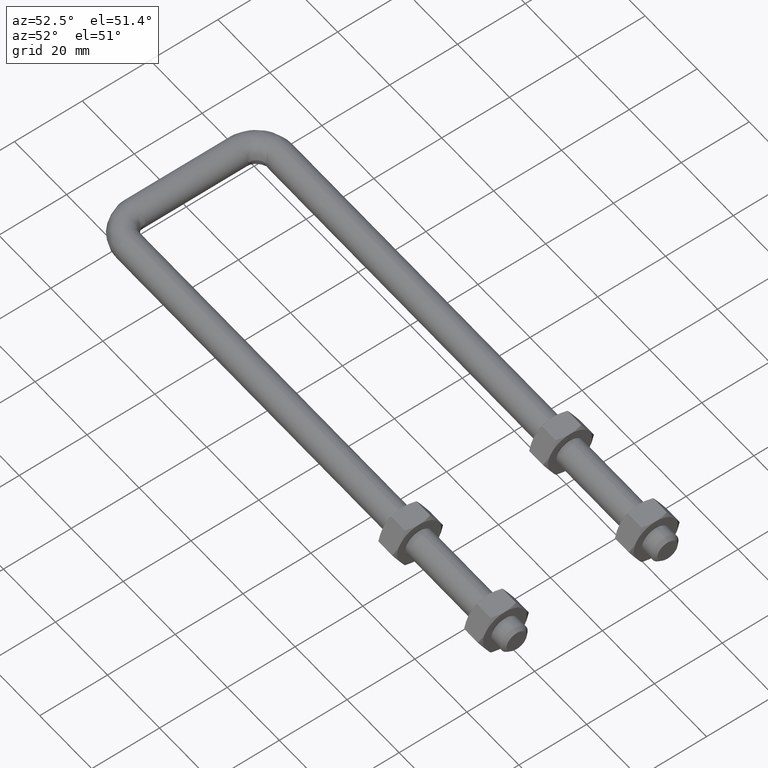
[diagram: clean part render]
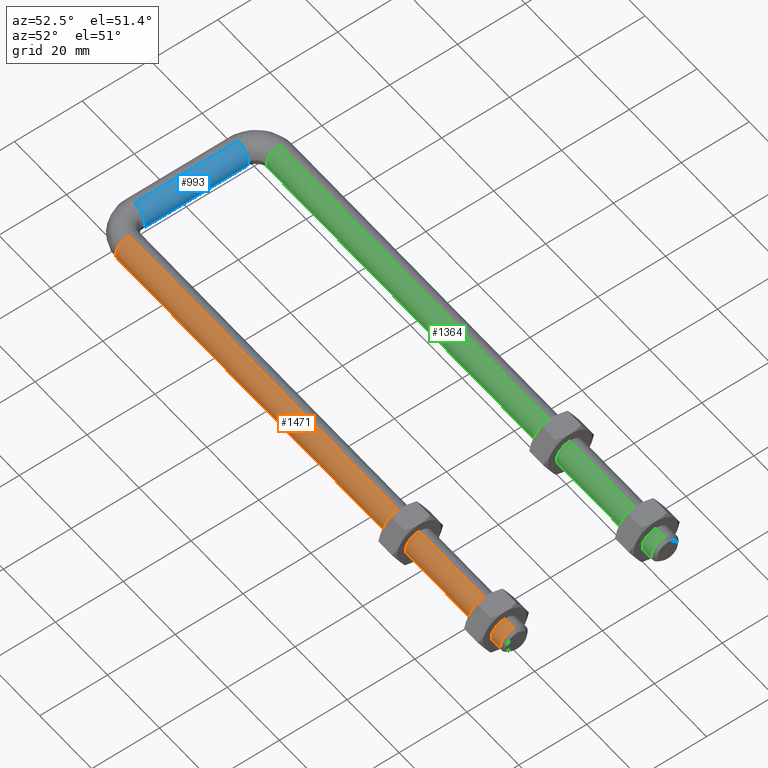
[diagram: same view with three faces highlighted in distinct colors, each labeled with its STEP entity id]
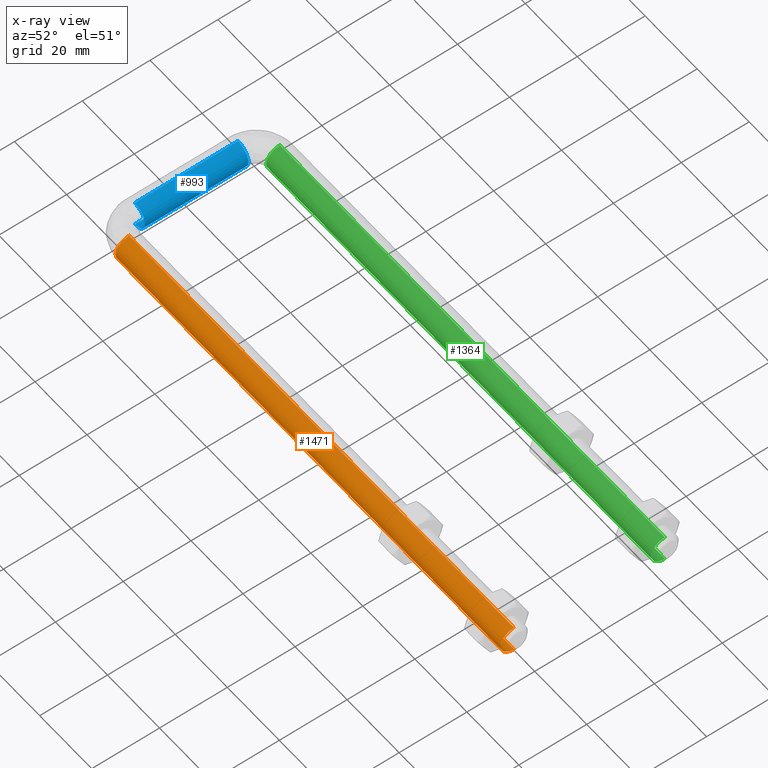
[diagram: x-ray of the same camera — body ghosted, the three highlighted faces saturated]
A machine part, auxiliary view with three faces highlighted in distinct colors.
The next image is the same camera in x-ray (body ghosted, the three faces saturated) — at least one of them is partly hidden behind the body in this view.
Their STEP definitions:

[orange] entity #1471 — the highlighted cylindrical surface (edge-blend (fillet) strip) has radius 4 mm, axis along (-1, -0, -0).
#40 = CARTESIAN_POINT ( 'NONE',  ( 7.000000000000000000, -22.25000000000000000, 0.0000000000000000000 ) ) ;
#42 = DIRECTION ( 'NONE',  ( -1.000000000000000000, -0.0000000000000000000, -0.0000000000000000000 ) ) ;
#106 = VERTEX_POINT ( 'NONE', #1505 ) ;
#114 = EDGE_CURVE ( 'NONE', #106, #197, #820, .T. ) ;
#117 = VECTOR ( 'NONE', #1183, 1000.000000000000000 ) ;
#124 = DIRECTION ( 'NONE',  ( -1.000000000000000000, -1.084202172485504300E-016, 0.0000000000000000000 ) ) ;
#197 = VERTEX_POINT ( 'NONE', #1094 ) ;
#201 = DIRECTION ( 'NONE',  ( 0.0000000000000000000, 1.000000000000000000, 0.0000000000000000000 ) ) ;
#209 = AXIS2_PLACEMENT_3D ( 'NONE', #1410, #799, #1009 ) ;
#246 = CARTESIAN_POINT ( 'NONE',  ( 7.000000000000000000, -22.25000000000000000, 0.0000000000000000000 ) ) ;
#295 = AXIS2_PLACEMENT_3D ( 'NONE', #246, #124, #201 ) ;
#333 = CARTESIAN_POINT ( 'NONE',  ( 155.0000000000019900, -22.24999999999998900, 4.000000000000000000 ) ) ;
#356 = ORIENTED_EDGE ( 'NONE', *, *, #526, .T. ) ;
#409 = DIRECTION ( 'NONE',  ( -1.000000000000000000, -0.0000000000000000000, -0.0000000000000000000 ) ) ;
#441 = CARTESIAN_POINT ( 'NONE',  ( 156.0000000000000000, -22.24999999999998900, -4.000000000000000000 ) ) ;
#476 = CARTESIAN_POINT ( 'NONE',  ( 155.0000000000019900, -22.24999999999998900, -4.000000000000000000 ) ) ;
#526 = EDGE_CURVE ( 'NONE', #998, #1048, #925, .T. ) ;
#533 = EDGE_CURVE ( 'NONE', #1138, #106, #1212, .T. ) ;
#548 = AXIS2_PLACEMENT_3D ( 'NONE', #40, #936, #1157 ) ;
#621 = ORIENTED_EDGE ( 'NONE', *, *, #114, .F. ) ;
#678 = LINE ( 'NONE', #1089, #1336 ) ;
#680 = AXIS2_PLACEMENT_3D ( 'NONE', #756, #409, #1497 ) ;
#742 = EDGE_LOOP ( 'NONE', ( #1140, #356, #1272, #621, #1201 ) ) ;
#756 = CARTESIAN_POINT ( 'NONE',  ( 156.0000000000000000, -22.24999999999998900, 0.0000000000000000000 ) ) ;
#762 = EDGE_CURVE ( 'NONE', #1048, #197, #678, .T. ) ;
#782 = LINE ( 'NONE', #441, #117 ) ;
#799 = DIRECTION ( 'NONE',  ( -1.000000000000000000, 0.0000000000000000000, 0.0000000000000000000 ) ) ;
#820 = CIRCLE ( 'NONE', #548, 4.000000000000000000 ) ;
#882 = EDGE_CURVE ( 'NONE', #998, #1138, #782, .T. ) ;
#925 = CIRCLE ( 'NONE', #209, 4.000000000000000000 ) ;
#936 = DIRECTION ( 'NONE',  ( -1.000000000000000000, -1.084202172485504300E-016, 0.0000000000000000000 ) ) ;
#998 = VERTEX_POINT ( 'NONE', #476 ) ;
#1009 = DIRECTION ( 'NONE',  ( 0.0000000000000000000, 0.0000000000000000000, -1.000000000000000000 ) ) ;
#1048 = VERTEX_POINT ( 'NONE', #333 ) ;
#1089 = CARTESIAN_POINT ( 'NONE',  ( 156.0000000000000000, -22.24999999999998900, 4.000000000000000000 ) ) ;
#1094 = CARTESIAN_POINT ( 'NONE',  ( 7.000000000000000000, -22.24999999999998900, 4.000000000000000000 ) ) ;
#1138 = VERTEX_POINT ( 'NONE', #1158 ) ;
#1140 = ORIENTED_EDGE ( 'NONE', *, *, #882, .F. ) ;
#1145 = CYLINDRICAL_SURFACE ( 'NONE', #680, 4.000000000000000000 ) ;
#1157 = DIRECTION ( 'NONE',  ( 0.0000000000000000000, 1.000000000000000000, 0.0000000000000000000 ) ) ;
#1158 = CARTESIAN_POINT ( 'NONE',  ( 7.000000000000000000, -22.24999999999998900, -4.000000000000000000 ) ) ;
#1183 = DIRECTION ( 'NONE',  ( -1.000000000000000000, -0.0000000000000000000, -0.0000000000000000000 ) ) ;
#1201 = ORIENTED_EDGE ( 'NONE', *, *, #533, .F. ) ;
#1212 = CIRCLE ( 'NONE', #295, 4.000000000000000000 ) ;
#1272 = ORIENTED_EDGE ( 'NONE', *, *, #762, .T. ) ;
#1336 = VECTOR ( 'NONE', #42, 1000.000000000000000 ) ;
#1410 = CARTESIAN_POINT ( 'NONE',  ( 155.0000000000019900, -22.24999999999998900, 0.0000000000000000000 ) ) ;
#1471 = ADVANCED_FACE ( 'NONE', ( #1530 ), #1145, .T. ) ;
#1497 = DIRECTION ( 'NONE',  ( 0.0000000000000000000, 0.0000000000000000000, 1.000000000000000000 ) ) ;
#1505 = CARTESIAN_POINT ( 'NONE',  ( 7.000000000000006200, -26.24999999999998900, 2.937866047754690900E-009 ) ) ;
#1530 = FACE_OUTER_BOUND ( 'NONE', #742, .T. ) ;

[blue] entity #993 — the highlighted cylindrical surface (edge-blend (fillet) strip) has radius 4 mm, axis along (0, -1, 0).
#3 = CYLINDRICAL_SURFACE ( 'NONE', #620, 4.000000000000000000 ) ;
#4 = CARTESIAN_POINT ( 'NONE',  ( 0.0000000000000000000, 15.25000000000000000, -4.000000000000000000 ) ) ;
#19 = CARTESIAN_POINT ( 'NONE',  ( 4.898587196589412800E-016, 15.25000000000000000, 4.000000000000000000 ) ) ;
#54 = CARTESIAN_POINT ( 'NONE',  ( 0.0000000000000000000, -15.25000000000000000, -4.000000000000000000 ) ) ;
#61 = DIRECTION ( 'NONE',  ( -0.0000000000000000000, 1.000000000000000000, -0.0000000000000000000 ) ) ;
#86 = VERTEX_POINT ( 'NONE', #425 ) ;
#108 = EDGE_CURVE ( 'NONE', #633, #1068, #199, .T. ) ;
#122 = DIRECTION ( 'NONE',  ( 0.0000000000000000000, -1.000000000000000000, 0.0000000000000000000 ) ) ;
#151 = ORIENTED_EDGE ( 'NONE', *, *, #1301, .F. ) ;
#174 = EDGE_CURVE ( 'NONE', #86, #1068, #1193, .T. ) ;
#199 = LINE ( 'NONE', #19, #1438 ) ;
#251 = CARTESIAN_POINT ( 'NONE',  ( 0.0000000000000000000, 15.25000000000000000, 0.0000000000000000000 ) ) ;
#273 = ORIENTED_EDGE ( 'NONE', *, *, #1467, .F. ) ;
#308 = CARTESIAN_POINT ( 'NONE',  ( 0.0000000000000000000, 15.25000000000000000, -4.000000000000000000 ) ) ;
#321 = CARTESIAN_POINT ( 'NONE',  ( 0.0000000000000000000, 15.25000000000000000, 0.0000000000000000000 ) ) ;
#375 = AXIS2_PLACEMENT_3D ( 'NONE', #527, #61, #1377 ) ;
#422 = ORIENTED_EDGE ( 'NONE', *, *, #108, .T. ) ;
#425 = CARTESIAN_POINT ( 'NONE',  ( 3.999999999988348900, -15.24999999999999800, 9.044274687501476200E-010 ) ) ;
#427 = DIRECTION ( 'NONE',  ( 8.881784197001252300E-016, 0.0000000000000000000, -1.000000000000000000 ) ) ;
#505 = DIRECTION ( 'NONE',  ( 1.000000000000000000, 0.0000000000000000000, 0.0000000000000000000 ) ) ;
#527 = CARTESIAN_POINT ( 'NONE',  ( 0.0000000000000000000, 15.25000000000000000, 0.0000000000000000000 ) ) ;
#618 = CARTESIAN_POINT ( 'NONE',  ( 4.898587196589412800E-016, -15.25000000000000000, 4.000000000000000000 ) ) ;
#620 = AXIS2_PLACEMENT_3D ( 'NONE', #251, #122, #940 ) ;
#633 = VERTEX_POINT ( 'NONE', #1437 ) ;
#642 = CARTESIAN_POINT ( 'NONE',  ( 0.0000000000000000000, -15.25000000000000000, 0.0000000000000000000 ) ) ;
#699 = DIRECTION ( 'NONE',  ( 1.000000000000000000, 0.0000000000000000000, 0.0000000000000000000 ) ) ;
#704 = AXIS2_PLACEMENT_3D ( 'NONE', #642, #1197, #505 ) ;
#716 = EDGE_CURVE ( 'NONE', #1475, #86, #1378, .T. ) ;
#810 = DIRECTION ( 'NONE',  ( 0.0000000000000000000, -1.000000000000000000, 0.0000000000000000000 ) ) ;
#834 = DIRECTION ( 'NONE',  ( 0.0000000000000000000, -1.000000000000000000, 0.0000000000000000000 ) ) ;
#940 = DIRECTION ( 'NONE',  ( 0.0000000000000000000, 0.0000000000000000000, -1.000000000000000000 ) ) ;
#953 = VERTEX_POINT ( 'NONE', #308 ) ;
#965 = FACE_OUTER_BOUND ( 'NONE', #1528, .T. ) ;
#993 = ADVANCED_FACE ( 'NONE', ( #965 ), #3, .T. ) ;
#1028 = ORIENTED_EDGE ( 'NONE', *, *, #1105, .F. ) ;
#1029 = VERTEX_POINT ( 'NONE', #1230 ) ;
#1068 = VERTEX_POINT ( 'NONE', #618 ) ;
#1096 = AXIS2_PLACEMENT_3D ( 'NONE', #1446, #1458, #699 ) ;
#1105 = EDGE_CURVE ( 'NONE', #633, #1029, #1134, .T. ) ;
#1134 = CIRCLE ( 'NONE', #1275, 4.000000000000000000 ) ;
#1155 = DIRECTION ( 'NONE',  ( -0.0000000000000000000, 1.000000000000000000, -0.0000000000000000000 ) ) ;
#1188 = VECTOR ( 'NONE', #834, 1000.000000000000000 ) ;
#1193 = CIRCLE ( 'NONE', #704, 4.000000000000000000 ) ;
#1197 = DIRECTION ( 'NONE',  ( 0.0000000000000000000, -1.000000000000000000, 0.0000000000000000000 ) ) ;
#1230 = CARTESIAN_POINT ( 'NONE',  ( 3.999999999976698200, 15.25000000000000000, 1.808854815035615400E-009 ) ) ;
#1275 = AXIS2_PLACEMENT_3D ( 'NONE', #321, #1155, #427 ) ;
#1301 = EDGE_CURVE ( 'NONE', #953, #1475, #1507, .T. ) ;
#1377 = DIRECTION ( 'NONE',  ( -1.776356839400250500E-015, 0.0000000000000000000, -1.000000000000000000 ) ) ;
#1378 = CIRCLE ( 'NONE', #1096, 4.000000000000000000 ) ;
#1383 = ORIENTED_EDGE ( 'NONE', *, *, #174, .F. ) ;
#1421 = ORIENTED_EDGE ( 'NONE', *, *, #716, .F. ) ;
#1437 = CARTESIAN_POINT ( 'NONE',  ( 4.898587196589412800E-016, 15.25000000000000000, 4.000000000000000000 ) ) ;
#1438 = VECTOR ( 'NONE', #810, 1000.000000000000000 ) ;
#1446 = CARTESIAN_POINT ( 'NONE',  ( 0.0000000000000000000, -15.25000000000000000, 0.0000000000000000000 ) ) ;
#1458 = DIRECTION ( 'NONE',  ( 0.0000000000000000000, -1.000000000000000000, 0.0000000000000000000 ) ) ;
#1467 = EDGE_CURVE ( 'NONE', #1029, #953, #1500, .T. ) ;
#1475 = VERTEX_POINT ( 'NONE', #54 ) ;
#1500 = CIRCLE ( 'NONE', #375, 4.000000000000000000 ) ;
#1507 = LINE ( 'NONE', #4, #1188 ) ;
#1528 = EDGE_LOOP ( 'NONE', ( #1028, #422, #1383, #1421, #151, #273 ) ) ;

[green] entity #1364 — the highlighted cylindrical surface (edge-blend (fillet) strip) has radius 4 mm, axis along (-1, -0, -0).
#70 = VERTEX_POINT ( 'NONE', #475 ) ;
#105 = DIRECTION ( 'NONE',  ( -1.000000000000000000, -0.0000000000000000000, -0.0000000000000000000 ) ) ;
#132 = EDGE_CURVE ( 'NONE', #70, #1441, #1119, .T. ) ;
#194 = CIRCLE ( 'NONE', #481, 4.000000000000000000 ) ;
#269 = VERTEX_POINT ( 'NONE', #447 ) ;
#283 = CARTESIAN_POINT ( 'NONE',  ( 156.0000000000000000, 22.25000000000001100, 4.000000000000000000 ) ) ;
#447 = CARTESIAN_POINT ( 'NONE',  ( 155.0000000000019900, 22.25000000000001100, -4.000000000000000000 ) ) ;
#459 = EDGE_CURVE ( 'NONE', #1282, #1441, #1284, .T. ) ;
#475 = CARTESIAN_POINT ( 'NONE',  ( 7.000000000000006200, 18.25000000000001100, 2.937638113482707300E-009 ) ) ;
#481 = AXIS2_PLACEMENT_3D ( 'NONE', #1423, #489, #676 ) ;
#489 = DIRECTION ( 'NONE',  ( -1.000000000000000000, 0.0000000000000000000, 0.0000000000000000000 ) ) ;
#493 = CARTESIAN_POINT ( 'NONE',  ( 156.0000000000000000, 22.25000000000001100, -4.000000000000000000 ) ) ;
#506 = CARTESIAN_POINT ( 'NONE',  ( 7.000000000000000000, 22.25000000000000000, 0.0000000000000000000 ) ) ;
#566 = ORIENTED_EDGE ( 'NONE', *, *, #1338, .T. ) ;
#603 = DIRECTION ( 'NONE',  ( -1.000000000000000000, -1.084202172485504400E-016, 0.0000000000000000000 ) ) ;
#625 = AXIS2_PLACEMENT_3D ( 'NONE', #506, #603, #682 ) ;
#662 = AXIS2_PLACEMENT_3D ( 'NONE', #942, #105, #808 ) ;
#676 = DIRECTION ( 'NONE',  ( 0.0000000000000000000, 0.0000000000000000000, -1.000000000000000000 ) ) ;
#681 = VERTEX_POINT ( 'NONE', #807 ) ;
#682 = DIRECTION ( 'NONE',  ( -2.168404344971008900E-016, 1.000000000000000000, 0.0000000000000000000 ) ) ;
#700 = LINE ( 'NONE', #493, #922 ) ;
#722 = DIRECTION ( 'NONE',  ( -1.000000000000000000, -0.0000000000000000000, -0.0000000000000000000 ) ) ;
#744 = CYLINDRICAL_SURFACE ( 'NONE', #1220, 4.000000000000000000 ) ;
#807 = CARTESIAN_POINT ( 'NONE',  ( 7.000000000000000000, 22.25000000000001100, -4.000000000000000000 ) ) ;
#808 = DIRECTION ( 'NONE',  ( 0.0000000000000000000, 0.0000000000000000000, -1.000000000000000000 ) ) ;
#837 = CARTESIAN_POINT ( 'NONE',  ( 7.000000000000000000, 22.25000000000001100, 4.000000000000000000 ) ) ;
#841 = DIRECTION ( 'NONE',  ( 0.0000000000000000000, 0.0000000000000000000, 1.000000000000000000 ) ) ;
#858 = CARTESIAN_POINT ( 'NONE',  ( 156.0000000000000000, 22.25000000000001100, 0.0000000000000000000 ) ) ;
#876 = DIRECTION ( 'NONE',  ( -1.000000000000000000, -0.0000000000000000000, -0.0000000000000000000 ) ) ;
#921 = CARTESIAN_POINT ( 'NONE',  ( 155.0000000000019900, 22.25000000000001100, 4.000000000000000000 ) ) ;
#922 = VECTOR ( 'NONE', #722, 1000.000000000000000 ) ;
#942 = CARTESIAN_POINT ( 'NONE',  ( 7.000000000000000000, 22.25000000000000000, 0.0000000000000000000 ) ) ;
#995 = EDGE_CURVE ( 'NONE', #269, #681, #700, .T. ) ;
#1064 = EDGE_LOOP ( 'NONE', ( #1090, #566, #1403, #1252, #1307 ) ) ;
#1090 = ORIENTED_EDGE ( 'NONE', *, *, #995, .F. ) ;
#1112 = FACE_OUTER_BOUND ( 'NONE', #1064, .T. ) ;
#1119 = CIRCLE ( 'NONE', #625, 4.000000000000000000 ) ;
#1214 = EDGE_CURVE ( 'NONE', #681, #70, #1263, .T. ) ;
#1220 = AXIS2_PLACEMENT_3D ( 'NONE', #858, #1422, #841 ) ;
#1247 = VECTOR ( 'NONE', #876, 1000.000000000000000 ) ;
#1252 = ORIENTED_EDGE ( 'NONE', *, *, #132, .F. ) ;
#1263 = CIRCLE ( 'NONE', #662, 4.000000000000000000 ) ;
#1282 = VERTEX_POINT ( 'NONE', #921 ) ;
#1284 = LINE ( 'NONE', #283, #1247 ) ;
#1307 = ORIENTED_EDGE ( 'NONE', *, *, #1214, .F. ) ;
#1338 = EDGE_CURVE ( 'NONE', #269, #1282, #194, .T. ) ;
#1364 = ADVANCED_FACE ( 'NONE', ( #1112 ), #744, .T. ) ;
#1403 = ORIENTED_EDGE ( 'NONE', *, *, #459, .T. ) ;
#1422 = DIRECTION ( 'NONE',  ( -1.000000000000000000, -0.0000000000000000000, -0.0000000000000000000 ) ) ;
#1423 = CARTESIAN_POINT ( 'NONE',  ( 155.0000000000019900, 22.25000000000001100, 0.0000000000000000000 ) ) ;
#1441 = VERTEX_POINT ( 'NONE', #837 ) ;